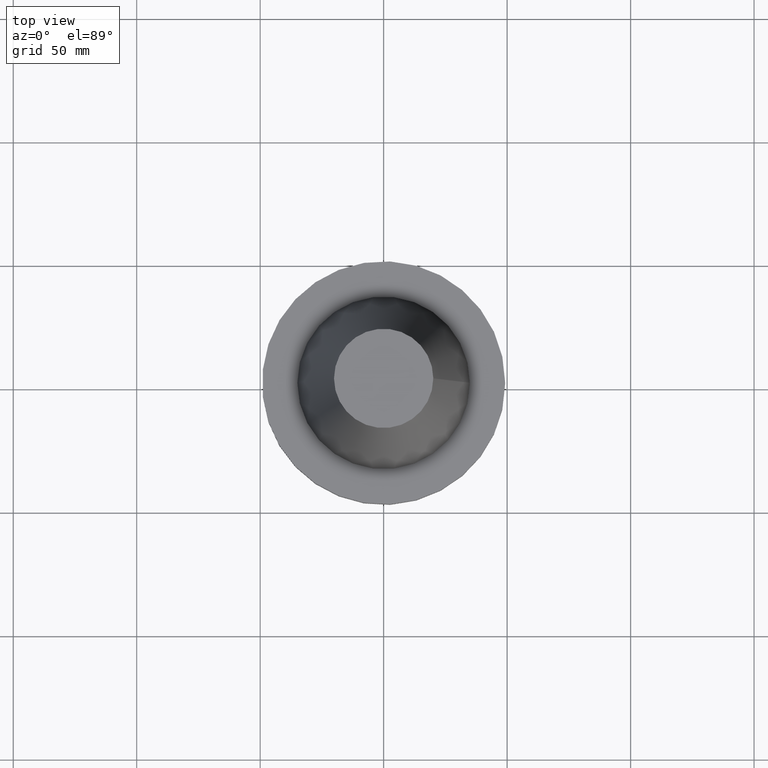
[diagram: clean part render]
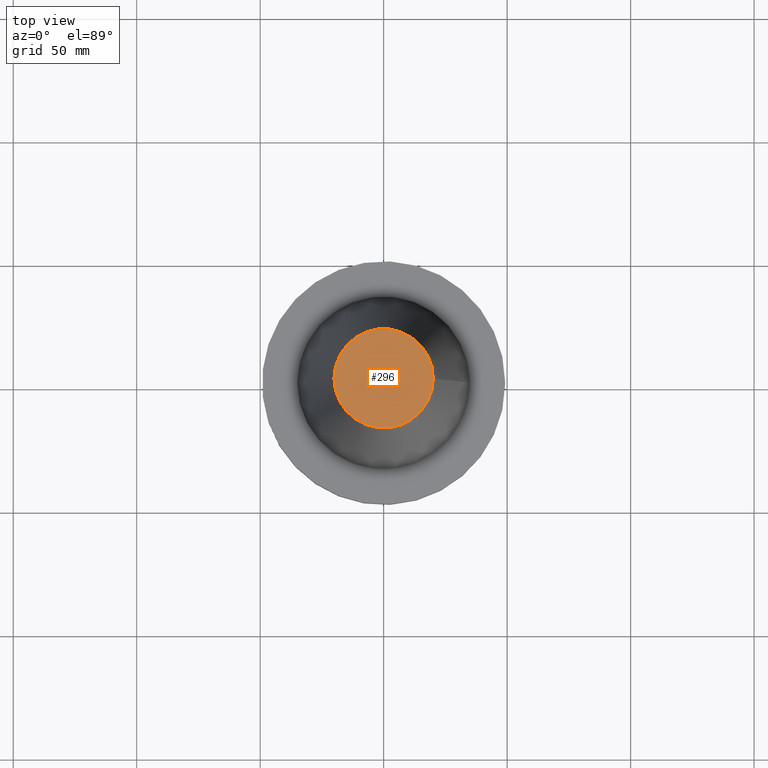
[diagram: same view with one face highlighted and labeled with its STEP entity id]
A machine part, top view. The second image highlights one B-rep face of the part: STEP entity #296.
In plain terms, the highlighted planar face has unit normal (0, 0, -1).
Its self-contained STEP definition (entity closure, byte-faithful):
#63 = CIRCLE ( 'NONE', #221, 20.10819343178871321 ) ;
#67 = VERTEX_POINT ( 'NONE', #316 ) ;
#119 = ORIENTED_EDGE ( 'NONE', *, *, #388, .T. ) ;
#128 = CARTESIAN_POINT ( 'NONE',  ( 0.000000000000000000, 0.000000000000000000, 101.5999999999999801 ) ) ;
#147 = CARTESIAN_POINT ( 'NONE',  ( 0.000000000000000000, 20.10819343178871321, 101.5999999999999943 ) ) ;
#221 = AXIS2_PLACEMENT_3D ( 'NONE', #128, #371, #243 ) ;
#243 = DIRECTION ( 'NONE',  ( 1.000000000000000000, 0.000000000000000000, 0.000000000000000000 ) ) ;
#266 = DIRECTION ( 'NONE',  ( 0.000000000000000000, 0.000000000000000000, -1.000000000000000000 ) ) ;
#292 = AXIS2_PLACEMENT_3D ( 'NONE', #147, #266, #392 ) ;
#296 = ADVANCED_FACE ( 'NONE', ( #340 ), #342, .F. ) ;
#316 = CARTESIAN_POINT ( 'NONE',  ( 20.10819343178871321, 0.000000000000000000, 101.5999999999999801 ) ) ;
#340 = FACE_OUTER_BOUND ( 'NONE', #353, .T. ) ;
#342 = PLANE ( 'NONE',  #292 ) ;
#353 = EDGE_LOOP ( 'NONE', ( #119 ) ) ;
#371 = DIRECTION ( 'NONE',  ( -0.000000000000000000, -0.000000000000000000, 1.000000000000000000 ) ) ;
#388 = EDGE_CURVE ( 'NONE', #67, #67, #63, .T. ) ;
#392 = DIRECTION ( 'NONE',  ( -1.000000000000000000, 0.000000000000000000, -0.000000000000000000 ) ) ;